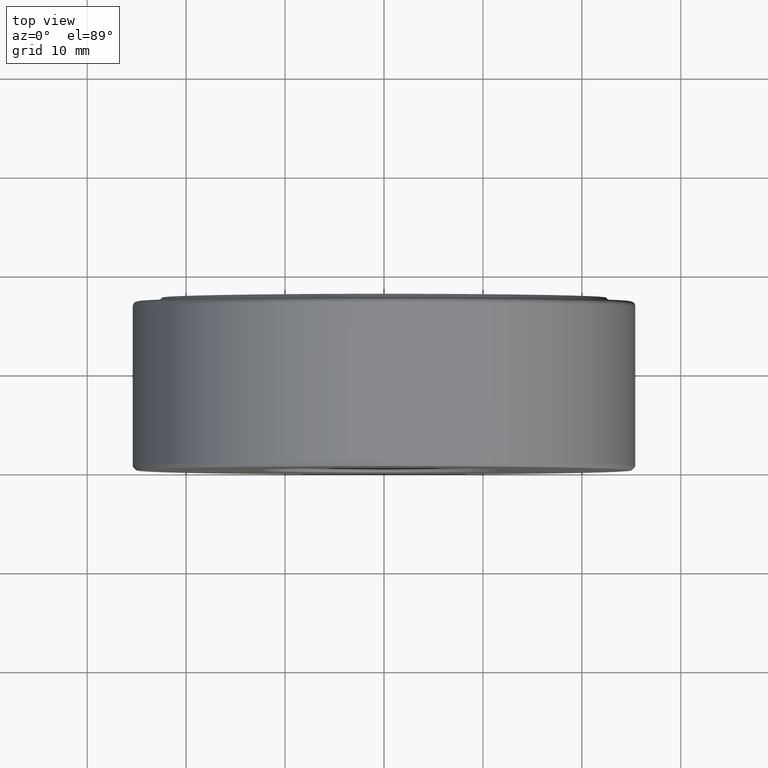
[diagram: clean part render]
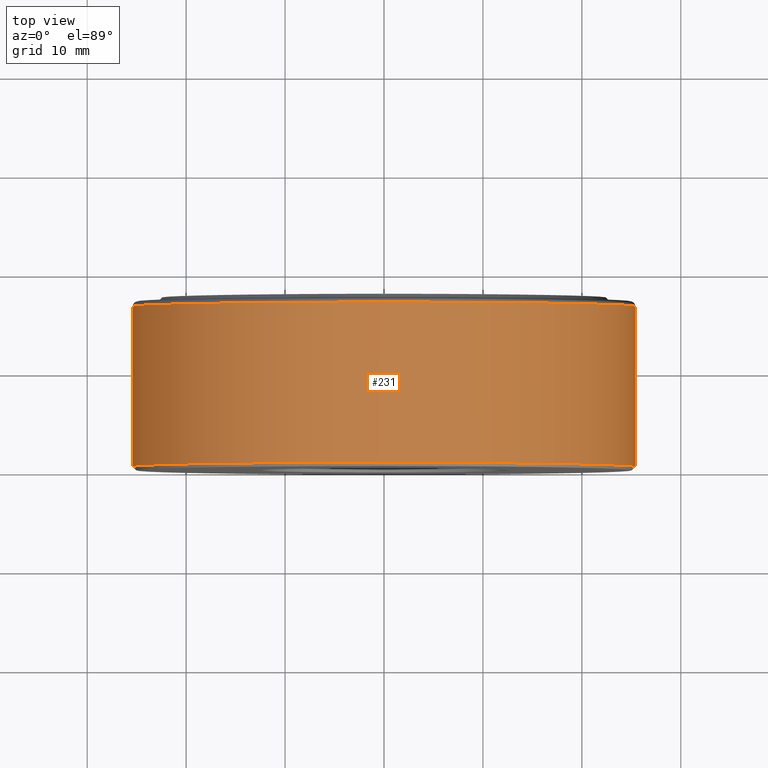
[diagram: same view with one face highlighted and labeled with its STEP entity id]
A machine part, top view. The second image highlights one B-rep face of the part: STEP entity #231.
In plain terms, the highlighted cylindrical surface (bore or boss wall) has radius 25.4 mm, axis along (-0, 1, -0).
Its self-contained STEP definition (entity closure, byte-faithful):
#19 = EDGE_CURVE ( 'NONE', #322, #322, #332, .T. ) ;
#35 = DIRECTION ( 'NONE',  ( 0.0000000000000000000, 0.0000000000000000000, 1.000000000000000000 ) ) ;
#72 = EDGE_LOOP ( 'NONE', ( #104 ) ) ;
#78 = CARTESIAN_POINT ( 'NONE',  ( 0.0000000000000000000, 0.01499999999999997700, 0.0000000000000000000 ) ) ;
#87 = EDGE_LOOP ( 'NONE', ( #341 ) ) ;
#104 = ORIENTED_EDGE ( 'NONE', *, *, #19, .F. ) ;
#117 = CARTESIAN_POINT ( 'NONE',  ( 0.0000000000000000000, 0.6524999999999997500, 1.000000000000000000 ) ) ;
#188 = FACE_OUTER_BOUND ( 'NONE', #72, .T. ) ;
#231 = ADVANCED_FACE ( 'NONE', ( #188, #281 ), #270, .T. ) ;
#260 = CARTESIAN_POINT ( 'NONE',  ( 0.0000000000000000000, 0.0000000000000000000, 0.0000000000000000000 ) ) ;
#270 = CYLINDRICAL_SURFACE ( 'NONE', #445, 1.000000000000000000 ) ;
#281 = FACE_OUTER_BOUND ( 'NONE', #87, .T. ) ;
#290 = AXIS2_PLACEMENT_3D ( 'NONE', #78, #541, #35 ) ;
#298 = DIRECTION ( 'NONE',  ( 0.0000000000000000000, 0.0000000000000000000, 1.000000000000000000 ) ) ;
#299 = DIRECTION ( 'NONE',  ( -0.0000000000000000000, 1.000000000000000000, -0.0000000000000000000 ) ) ;
#322 = VERTEX_POINT ( 'NONE', #117 ) ;
#332 = CIRCLE ( 'NONE', #603, 1.000000000000000000 ) ;
#341 = ORIENTED_EDGE ( 'NONE', *, *, #347, .T. ) ;
#347 = EDGE_CURVE ( 'NONE', #537, #537, #559, .T. ) ;
#431 = CARTESIAN_POINT ( 'NONE',  ( 0.0000000000000000000, 0.01499999999999997700, 0.9999999999999998900 ) ) ;
#441 = DIRECTION ( 'NONE',  ( -0.0000000000000000000, 1.000000000000000000, -0.0000000000000000000 ) ) ;
#445 = AXIS2_PLACEMENT_3D ( 'NONE', #260, #441, #298 ) ;
#494 = CARTESIAN_POINT ( 'NONE',  ( 0.0000000000000000000, 0.6524999999999997500, 0.0000000000000000000 ) ) ;
#497 = DIRECTION ( 'NONE',  ( 0.0000000000000000000, 0.0000000000000000000, 1.000000000000000000 ) ) ;
#537 = VERTEX_POINT ( 'NONE', #431 ) ;
#541 = DIRECTION ( 'NONE',  ( -0.0000000000000000000, 1.000000000000000000, -0.0000000000000000000 ) ) ;
#559 = CIRCLE ( 'NONE', #290, 0.9999999999999998900 ) ;
#603 = AXIS2_PLACEMENT_3D ( 'NONE', #494, #299, #497 ) ;